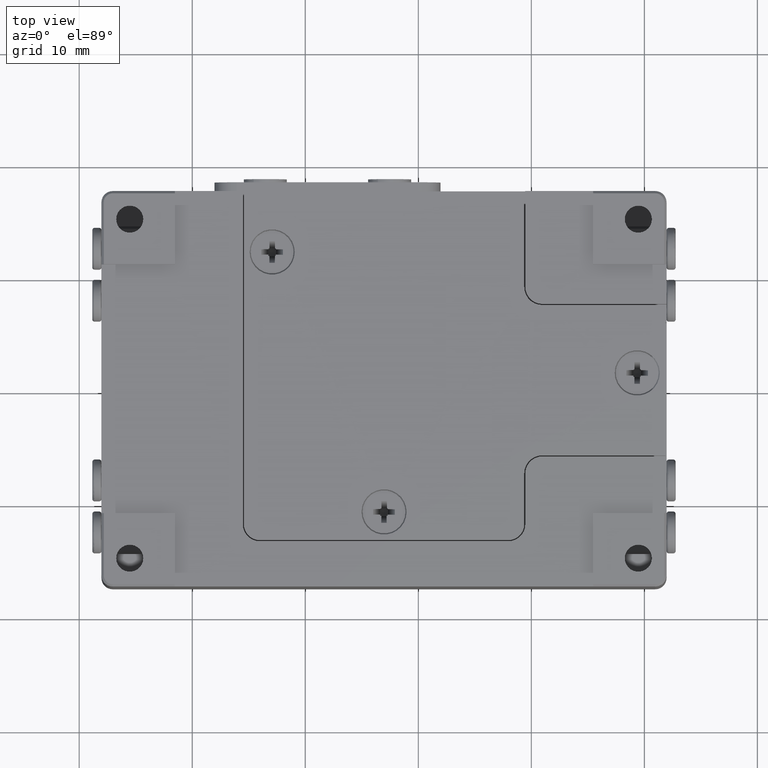
[diagram: clean part render]
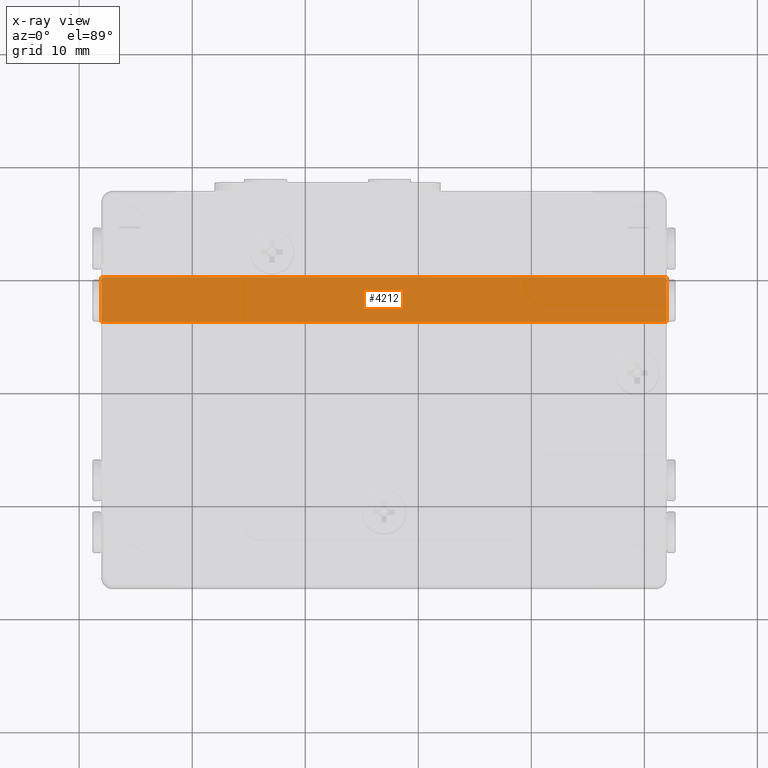
[diagram: x-ray — body ghosted, one internal face saturated and labeled with its STEP entity id]
A machine part, top view, then the same camera in x-ray: the body is ghosted and one INTERNAL B-rep face — a face not visible from any outside direction — is saturated and labeled: STEP entity #4212.
In plain terms, the highlighted planar face has unit normal (0, 0, -1).
Its self-contained STEP definition (entity closure, byte-faithful):
#420 = VERTEX_POINT ( 'NONE', #7894 ) ;
#713 = DIRECTION ( 'NONE',  ( 0.000000000000000000, -1.000000000000000000, 0.000000000000000000 ) ) ;
#1416 = ORIENTED_EDGE ( 'NONE', *, *, #9126, .T. ) ;
#1608 = VECTOR ( 'NONE', #7708, 1000.000000000000000 ) ;
#1656 = EDGE_CURVE ( 'NONE', #420, #9032, #11401, .T. ) ;
#1751 = ORIENTED_EDGE ( 'NONE', *, *, #4827, .T. ) ;
#2027 = ORIENTED_EDGE ( 'NONE', *, *, #11936, .T. ) ;
#2418 = EDGE_LOOP ( 'NONE', ( #13417, #1416, #1751, #2027 ) ) ;
#2513 = VECTOR ( 'NONE', #4281, 1000.000000000000000 ) ;
#2909 = VERTEX_POINT ( 'NONE', #6557 ) ;
#3249 = CARTESIAN_POINT ( 'NONE',  ( 27.63157894736844966, 1.455465587044536102, 4.000000000000000000 ) ) ;
#4138 = CARTESIAN_POINT ( 'NONE',  ( 0.000000000000000000, 0.000000000000000000, 4.000000000000000000 ) ) ;
#4212 = ADVANCED_FACE ( 'NONE', ( #4978 ), #7267, .T. ) ;
#4281 = DIRECTION ( 'NONE',  ( -1.000000000000000000, 0.000000000000000000, 0.000000000000000000 ) ) ;
#4827 = EDGE_CURVE ( 'NONE', #2909, #13554, #12749, .T. ) ;
#4978 = FACE_OUTER_BOUND ( 'NONE', #2418, .T. ) ;
#5155 = DIRECTION ( 'NONE',  ( -1.000000000000000000, 0.000000000000000000, 0.000000000000000000 ) ) ;
#5966 = LINE ( 'NONE', #9905, #10967 ) ;
#6544 = LINE ( 'NONE', #8674, #1608 ) ;
#6557 = CARTESIAN_POINT ( 'NONE',  ( 27.63157894736844966, 1.455465587044536102, 4.000000000000000000 ) ) ;
#7267 = PLANE ( 'NONE',  #13591 ) ;
#7708 = DIRECTION ( 'NONE',  ( 0.000000000000000000, 1.000000000000000000, 0.000000000000000000 ) ) ;
#7894 = CARTESIAN_POINT ( 'NONE',  ( 27.63157894736844966, 5.455465587044540321, 4.000000000000000000 ) ) ;
#8674 = CARTESIAN_POINT ( 'NONE',  ( -22.36842105263154679, 1.455465587044536102, 4.000000000000000000 ) ) ;
#9032 = VERTEX_POINT ( 'NONE', #12542 ) ;
#9126 = EDGE_CURVE ( 'NONE', #420, #2909, #5966, .T. ) ;
#9127 = DIRECTION ( 'NONE',  ( 0.000000000000000000, 0.000000000000000000, -1.000000000000000000 ) ) ;
#9458 = CARTESIAN_POINT ( 'NONE',  ( 27.63157894736844966, 5.455465587044540321, 4.000000000000000000 ) ) ;
#9905 = CARTESIAN_POINT ( 'NONE',  ( 27.63157894736844966, 12.95546558704454121, 4.000000000000000000 ) ) ;
#10034 = VECTOR ( 'NONE', #5155, 1000.000000000000000 ) ;
#10869 = DIRECTION ( 'NONE',  ( 0.000000000000000000, -1.000000000000000000, 0.000000000000000000 ) ) ;
#10871 = CARTESIAN_POINT ( 'NONE',  ( -22.36842105263154679, 1.455465587044536102, 4.000000000000000000 ) ) ;
#10967 = VECTOR ( 'NONE', #10869, 1000.000000000000000 ) ;
#11401 = LINE ( 'NONE', #9458, #10034 ) ;
#11936 = EDGE_CURVE ( 'NONE', #13554, #9032, #6544, .T. ) ;
#12542 = CARTESIAN_POINT ( 'NONE',  ( -22.36842105263154679, 5.455465587044540321, 4.000000000000000000 ) ) ;
#12749 = LINE ( 'NONE', #3249, #2513 ) ;
#13417 = ORIENTED_EDGE ( 'NONE', *, *, #1656, .F. ) ;
#13554 = VERTEX_POINT ( 'NONE', #10871 ) ;
#13591 = AXIS2_PLACEMENT_3D ( 'NONE', #4138, #9127, #713 ) ;